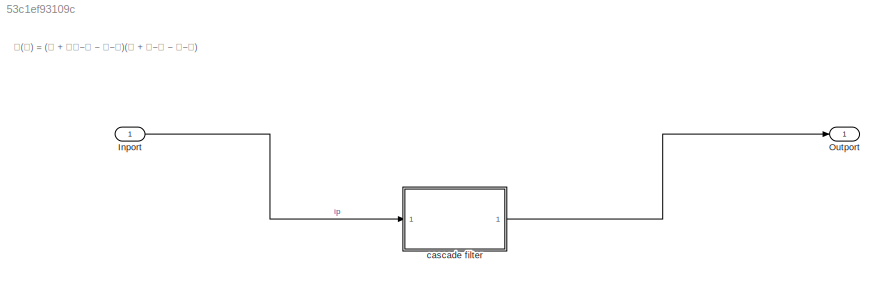
MODEL slx_53c1ef93109c
KIND model
CONFIG AbsTol = auto
CONFIG EnableMultiTasking = off
CONFIG FixedStep = auto
CONFIG MaxStep = auto
CONFIG MinStep = auto
CONFIG RelTol = 1e-3
CONFIG SampleTimeConstraint = Unconstrained
CONFIG SolverName = VariableStepAuto
CONFIG StartTime = 0.0
CONFIG StopTime = 10.0
BLOCK [Inport] Inport
BLOCK [Outport] Outport
BLOCK [ModelReference] cascade filter
  ModelNameDialog = cascade_filter
  ModelReferenceVersion = 1.1
  Ports = [1, 1]
ANNOTATION (root): 𝐇(𝐳) = (𝟏 + 𝟐𝐳−𝟏 − 𝐳−𝟐)(𝟏 + 𝐳−𝟏 − 𝐳−𝟐)
LINE Inport:1 -> cascade filter:1
LINE cascade filter:1 -> Outport:1
